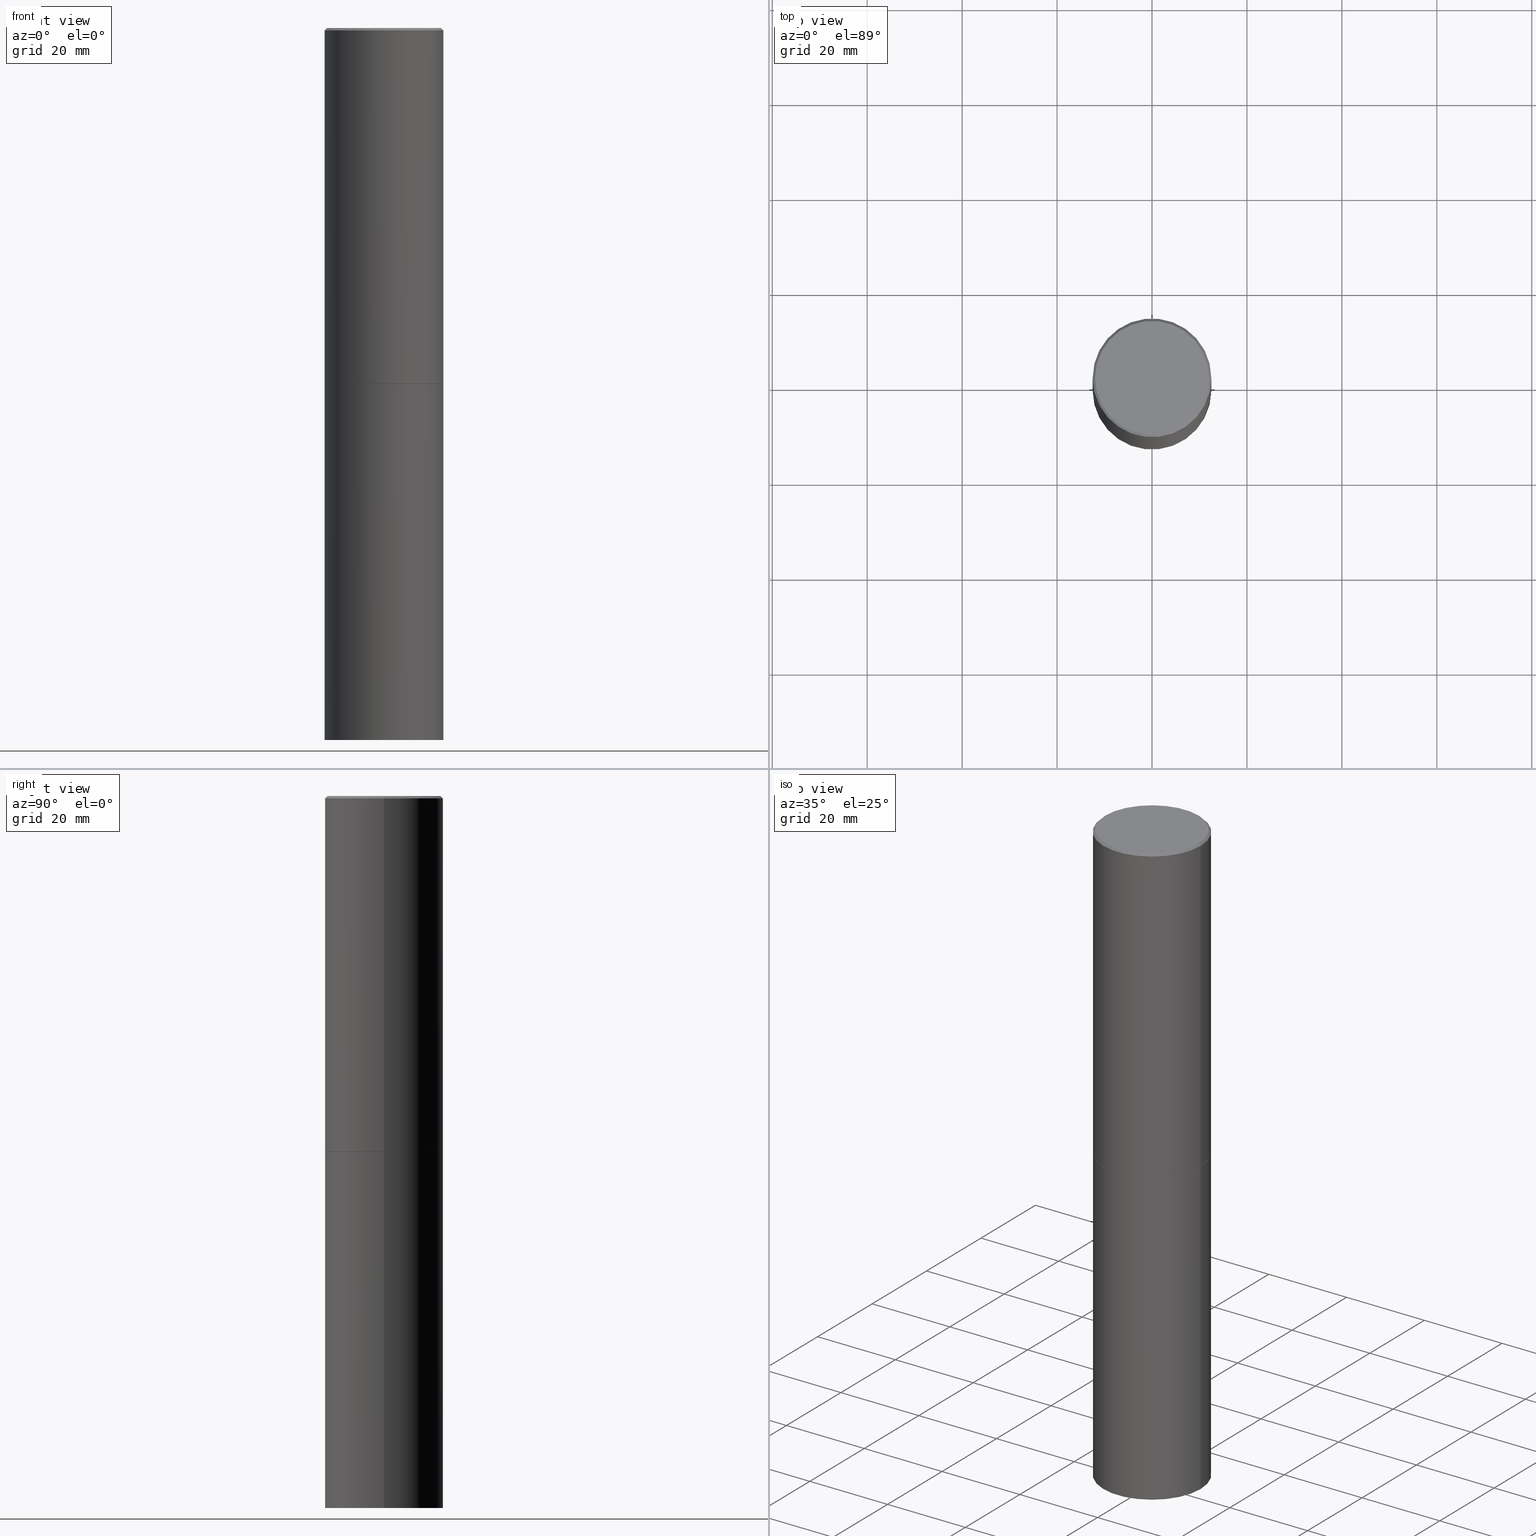
[diagram: canonical four-view strip — front | top / right | iso, engineering-drawing reading convention]
A machine part, canonical four-view strip (front | top / right | iso — engineering-drawing reading convention). The complete STEP part file that produces these views, byte-faithful:
ISO-10303-21;
HEADER;
FILE_DESCRIPTION (( 'STEP AP203' ),
    '1' );
FILE_NAME ('49400.STEP',
    '2024-02-28T19:01:41',
    ( '' ),
    ( '' ),
    'SwSTEP 2.0',
    'SolidWorks 2023',
    '' );
FILE_SCHEMA (( 'CONFIG_CONTROL_DESIGN' ));
ENDSEC;

DATA;
#1 = APPROVAL_DATE_TIME ( #198, #308 ) ;
#2 = PLANE ( 'NONE',  #48 ) ;
#3 = ADVANCED_FACE ( 'NONE', ( #311 ), #355, .T. ) ;
#4 = DIRECTION ( 'NONE',  ( -2.445468806185136597E-29, 3.491481338843145583E-15, 1.000000000000000000 ) ) ;
#5 = CONICAL_SURFACE ( 'NONE', #298, 0.4921499999999996988, 0.7853981633974469467 ) ;
#6 = PRODUCT_RELATED_PRODUCT_CATEGORY ( 'detail', '', ( #363 ) ) ;
#7 = PLANE ( 'NONE',  #322 ) ;
#8 = ORIENTED_EDGE ( 'NONE', *, *, #129, .T. ) ;
#9 = FACE_OUTER_BOUND ( 'NONE', #18, .T. ) ;
#10 = PERSON_AND_ORGANIZATION ( #328, #212 ) ;
#11 = DIRECTION ( 'NONE',  ( 1.000000000000000000, -6.982962677686264344E-15, 0.000000000000000000 ) ) ;
#12 = AXIS2_PLACEMENT_3D ( 'NONE', #82, #256, #342 ) ;
#13 = ORIENTED_EDGE ( 'NONE', *, *, #57, .F. ) ;
#14 = VERTEX_POINT ( 'NONE', #159 ) ;
#15 = AXIS2_PLACEMENT_3D ( 'NONE', #259, #178, #320 ) ;
#16 = DIMENSIONAL_EXPONENTS ( 1.000000000000000000, 0.000000000000000000, 0.000000000000000000, 0.000000000000000000, 0.000000000000000000, 0.000000000000000000, 0.000000000000000000 ) ;
#17 =( CONVERSION_BASED_UNIT ( 'INCH', #77 ) LENGTH_UNIT ( ) NAMED_UNIT ( #16 ) );
#18 = EDGE_LOOP ( 'NONE', ( #209, #144, #233, #54 ) ) ;
#19 = DIRECTION ( 'NONE',  ( -1.000000000000000000, 6.982962677686265922E-15, -4.876176775795935793E-29 ) ) ;
#20 = DIRECTION ( 'NONE',  ( 1.000000000000000000, -6.982962677686264344E-15, 0.000000000000000000 ) ) ;
#21 = CARTESIAN_POINT ( 'NONE',  ( 0.4921499999999998098, -3.436665081823294593E-15, 2.399810400207968762E-29 ) ) ;
#22 = PLANE ( 'NONE',  #100 ) ;
#23 = PERSON_AND_ORGANIZATION ( #328, #212 ) ;
#24 = ADVANCED_FACE ( 'NONE', ( #189 ), #47, .T. ) ;
#25 = PERSON_AND_ORGANIZATION_ROLE ( 'design_owner' ) ;
#26 = LINE ( 'NONE', #347, #74 ) ;
#27 = APPROVAL ( #267, 'UNSPECIFIED' ) ;
#28 = COORDINATED_UNIVERSAL_TIME_OFFSET ( 5, 0, .BEHIND. ) ;
#29 = COORDINATED_UNIVERSAL_TIME_OFFSET ( 5, 0, .BEHIND. ) ;
#30 = DIRECTION ( 'NONE',  ( -2.445468806185136597E-29, 3.491481338843145583E-15, 1.000000000000000000 ) ) ;
#31 = VECTOR ( 'NONE', #362, 39.37007874015748143 ) ;
#32 = DIRECTION ( 'NONE',  ( 1.000000000000000000, -6.982962677686265922E-15, 0.000000000000000000 ) ) ;
#33 = CARTESIAN_POINT ( 'NONE',  ( -0.4921499999999996988, 3.366835455046430506E-15, -0.02000000000000010797 ) ) ;
#34 = LOCAL_TIME ( 14, 1, 41.00000000000000000, #28 ) ;
#35 = VERTEX_POINT ( 'NONE', #191 ) ;
#36 = ORIENTED_EDGE ( 'NONE', *, *, #221, .T. ) ;
#37 = AXIS2_PLACEMENT_3D ( 'NONE', #223, #255, #194 ) ;
#38 = ORIENTED_EDGE ( 'NONE', *, *, #250, .F. ) ;
#39 = FACE_OUTER_BOUND ( 'NONE', #244, .T. ) ;
#40 = CARTESIAN_POINT ( 'NONE',  ( -0.4921499999999996988, 3.366835455046430506E-15, -0.02000000000000010797 ) ) ;
#41 = AXIS2_PLACEMENT_3D ( 'NONE', #365, #125, #338 ) ;
#42 = ADVANCED_FACE ( 'NONE', ( #39 ), #5, .T. ) ;
#43 = DIRECTION ( 'NONE',  ( 0.000000000000000000, 0.000000000000000000, 1.000000000000000000 ) ) ;
#44 = LINE ( 'NONE', #156, #314 ) ;
#45 = FACE_OUTER_BOUND ( 'NONE', #271, .T. ) ;
#46 = PERSON_AND_ORGANIZATION ( #328, #212 ) ;
#47 = CYLINDRICAL_SURFACE ( 'NONE', #284, 0.4921499999999999764 ) ;
#48 = AXIS2_PLACEMENT_3D ( 'NONE', #323, #61, #296 ) ;
#49 = APPROVAL_PERSON_ORGANIZATION ( #315, #27, #228 ) ;
#50 = UNCERTAINTY_MEASURE_WITH_UNIT (LENGTH_MEASURE( 1.000000000000000082E-05 ), #17, 'distance_accuracy_value', 'NONE');
#51 = FACE_OUTER_BOUND ( 'NONE', #330, .T. ) ;
#52 = CC_DESIGN_PERSON_AND_ORGANIZATION_ASSIGNMENT ( #286, #258, ( #310 ) ) ;
#53 = PERSON_AND_ORGANIZATION_ROLE ( 'design_supplier' ) ;
#54 = ORIENTED_EDGE ( 'NONE', *, *, #63, .F. ) ;
#55 = DIRECTION ( 'NONE',  ( 1.000000000000000000, -6.982962677686265922E-15, 0.000000000000000000 ) ) ;
#56 = EDGE_LOOP ( 'NONE', ( #326, #357, #224, #278 ) ) ;
#57 = EDGE_CURVE ( 'NONE', #115, #266, #281, .T. ) ;
#58 = AXIS2_PLACEMENT_3D ( 'NONE', #104, #229, #11 ) ;
#59 = CC_DESIGN_APPROVAL ( #27, ( #155 ) ) ;
#60 = CALENDAR_DATE ( 2024, 28, 2 ) ;
#61 = DIRECTION ( 'NONE',  ( 2.438088387897960049E-29, -3.491481338843145188E-15, -1.000000000000000000 ) ) ;
#62 = CARTESIAN_POINT ( 'NONE',  ( -0.4921499999999999764, -1.196718392382684217E-14, -2.952700000000000102 ) ) ;
#63 = EDGE_CURVE ( 'NONE', #76, #184, #287, .T. ) ;
#64 = VERTEX_POINT ( 'NONE', #366 ) ;
#65 = CLOSED_SHELL ( 'NONE', ( #117, #188, #329, #24 ) ) ;
#66 = CC_DESIGN_APPROVAL ( #308, ( #116 ) ) ;
#67 = CC_DESIGN_PERSON_AND_ORGANIZATION_ASSIGNMENT ( #108, #53, ( #116 ) ) ;
#68 = ORIENTED_EDGE ( 'NONE', *, *, #257, .F. ) ;
#69 = ORIENTED_EDGE ( 'NONE', *, *, #339, .F. ) ;
#70 = ORIENTED_EDGE ( 'NONE', *, *, #333, .F. ) ;
#71 = ORIENTED_EDGE ( 'NONE', *, *, #83, .F. ) ;
#72 = CARTESIAN_POINT ( 'NONE',  ( 0.000000000000000000, 0.000000000000000000, 0.000000000000000000 ) ) ;
#73 = DIRECTION ( 'NONE',  ( -1.000000000000000000, 6.982962677686265922E-15, 0.000000000000000000 ) ) ;
#74 = VECTOR ( 'NONE', #260, 39.37007874015748143 ) ;
#75 = VECTOR ( 'NONE', #254, 39.37007874015748143 ) ;
#76 = VERTEX_POINT ( 'NONE', #337 ) ;
#77 = LENGTH_MEASURE_WITH_UNIT ( LENGTH_MEASURE( 0.02539999999999999897 ), #101 );
#78 = CARTESIAN_POINT ( 'NONE',  ( -0.4911499999999999755, -6.819466302516424705E-15, -2.952700000000000546 ) ) ;
#79 = CC_DESIGN_SECURITY_CLASSIFICATION ( #310, ( #116 ) ) ;
#80 = CALENDAR_DATE ( 2024, 28, 2 ) ;
#81 = MECHANICAL_CONTEXT ( 'NONE', #119, 'mechanical' ) ;
#82 = CARTESIAN_POINT ( 'NONE',  ( 7.220735744022853640E-29, -1.030929694920215659E-14, -2.952700000000000546 ) ) ;
#83 = EDGE_CURVE ( 'NONE', #146, #14, #128, .T. ) ;
#84 = EDGE_LOOP ( 'NONE', ( #210, #351 ) ) ;
#85 = DIRECTION ( 'NONE',  ( -2.445468806185136597E-29, 3.491481338843145583E-15, 1.000000000000000000 ) ) ;
#86 = CIRCLE ( 'NONE', #218, 0.4921499999999996988 ) ;
#87 = PLANE ( 'NONE',  #12 ) ;
#88 = EDGE_CURVE ( 'NONE', #352, #14, #157, .T. ) ;
#89 = ORIENTED_EDGE ( 'NONE', *, *, #339, .T. ) ;
#90 = CC_DESIGN_PERSON_AND_ORGANIZATION_ASSIGNMENT ( #10, #317, ( #116 ) ) ;
#91 = EDGE_LOOP ( 'NONE', ( #8, #340 ) ) ;
#92 = ORIENTED_EDGE ( 'NONE', *, *, #270, .F. ) ;
#93 = ORIENTED_EDGE ( 'NONE', *, *, #221, .F. ) ;
#94 = ADVANCED_FACE ( 'NONE', ( #126 ), #252, .T. ) ;
#95 = AXIS2_PLACEMENT_3D ( 'NONE', #207, #318, #169 ) ;
#96 = AXIS2_PLACEMENT_3D ( 'NONE', #208, #300, #145 ) ;
#97 = CARTESIAN_POINT ( 'NONE',  ( 3.436665081823367957E-15, 0.4921499999999896513, -2.952700000000001435 ) ) ;
#98 = DIRECTION ( 'NONE',  ( -0.7071067811865465735, 2.468850131082246805E-15, -0.7071067811865484609 ) ) ;
#99 = APPLICATION_PROTOCOL_DEFINITION ( 'international standard', 'config_control_design', 1994, #119 ) ;
#100 = AXIS2_PLACEMENT_3D ( 'NONE', #97, #248, #19 ) ;
#101 =( LENGTH_UNIT ( ) NAMED_UNIT ( * ) SI_UNIT ( $, .METRE. ) );
#102 = DATE_AND_TIME ( #80, #299 ) ;
#103 = CARTESIAN_POINT ( 'NONE',  ( 4.890937612370299433E-31, -6.982962677686328587E-17, -0.02000000000000010797 ) ) ;
#104 = CARTESIAN_POINT ( 'NONE',  ( 7.220735744022853640E-29, -1.030929694920215659E-14, -2.952700000000000546 ) ) ;
#105 = VECTOR ( 'NONE', #292, 39.37007874015748143 ) ;
#106 = ADVANCED_FACE ( 'NONE', ( #45 ), #87, .F. ) ;
#107 = CARTESIAN_POINT ( 'NONE',  ( 7.220735744022852519E-29, -1.030929694920215502E-14, -2.952700000000000102 ) ) ;
#108 = PERSON_AND_ORGANIZATION ( #328, #212 ) ;
#109 = CARTESIAN_POINT ( 'NONE',  ( -0.4921499999999999764, -1.690881473276754954E-15, -2.951700000000000212 ) ) ;
#110 = ORIENTED_EDGE ( 'NONE', *, *, #83, .T. ) ;
#111 = DIRECTION ( 'NONE',  ( 1.000000000000000000, -6.982962677686265922E-15, 4.876176775795935793E-29 ) ) ;
#112 = CALENDAR_DATE ( 2024, 28, 2 ) ;
#113 = APPLICATION_CONTEXT ( 'configuration controlled 3d designs of mechanical parts and assemblies' ) ;
#114 = ORIENTED_EDGE ( 'NONE', *, *, #306, .F. ) ;
#115 = VERTEX_POINT ( 'NONE', #173 ) ;
#116 = PRODUCT_DEFINITION_FORMATION_WITH_SPECIFIED_SOURCE ( 'ANY', '', #363, .NOT_KNOWN. ) ;
#117 = ADVANCED_FACE ( 'NONE', ( #9 ), #133, .T. ) ;
#118 = ORIENTED_EDGE ( 'NONE', *, *, #57, .T. ) ;
#119 = APPLICATION_CONTEXT ( 'configuration controlled 3d designs of mechanical parts and assemblies' ) ;
#120 = DIRECTION ( 'NONE',  ( 1.000000000000000000, -6.982962677686265922E-15, 4.876176775795935793E-29 ) ) ;
#121 = ORIENTED_EDGE ( 'NONE', *, *, #161, .T. ) ;
#122 = CONICAL_SURFACE ( 'NONE', #95, 0.4911499999999999755, 0.7853981633972775267 ) ;
#123 = AXIS2_PLACEMENT_3D ( 'NONE', #103, #268, #227 ) ;
#124 = DIRECTION ( 'NONE',  ( -2.445468806185136597E-29, 3.491481338843145583E-15, 1.000000000000000000 ) ) ;
#125 = DIRECTION ( 'NONE',  ( -2.445468806185136597E-29, 3.491481338843145583E-15, 1.000000000000000000 ) ) ;
#126 = FACE_OUTER_BOUND ( 'NONE', #246, .T. ) ;
#127 = DIRECTION ( 'NONE',  ( 1.000000000000000000, -6.982962677686265922E-15, 0.000000000000000000 ) ) ;
#128 = LINE ( 'NONE', #361, #130 ) ;
#129 = EDGE_CURVE ( 'NONE', #184, #217, #195, .T. ) ;
#130 = VECTOR ( 'NONE', #307, 39.37007874015748143 ) ;
#131 = DIRECTION ( 'NONE',  ( -2.445468806185136597E-29, 3.491481338843145583E-15, 1.000000000000000000 ) ) ;
#132 = APPROVAL_STATUS ( 'not_yet_approved' ) ;
#133 = CYLINDRICAL_SURFACE ( 'NONE', #293, 0.4921499999999999764 ) ;
#134 = DATE_AND_TIME ( #112, #34 ) ;
#135 = ADVANCED_FACE ( 'NONE', ( #51 ), #122, .T. ) ;
#136 = DIRECTION ( 'NONE',  ( 1.000000000000000000, -6.982962677686265922E-15, 0.000000000000000000 ) ) ;
#137 = LOCAL_TIME ( 14, 1, 41.00000000000000000, #168 ) ;
#138 = DIRECTION ( 'NONE',  ( -2.445468806185136597E-29, 3.491481338843145583E-15, 1.000000000000000000 ) ) ;
#139 = ORIENTED_EDGE ( 'NONE', *, *, #354, .F. ) ;
#140 = APPROVAL_ROLE ( '' ) ;
#141 = DIRECTION ( 'NONE',  ( 2.438088387897960049E-29, -3.491481338843145188E-15, -1.000000000000000000 ) ) ;
#142 = AXIS2_PLACEMENT_3D ( 'NONE', #325, #30, #136 ) ;
#143 = LOCAL_TIME ( 14, 1, 41.00000000000000000, #345 ) ;
#144 = ORIENTED_EDGE ( 'NONE', *, *, #183, .T. ) ;
#145 = DIRECTION ( 'NONE',  ( 1.000000000000000000, -6.982962677686264344E-15, 0.000000000000000000 ) ) ;
#146 = VERTEX_POINT ( 'NONE', #202 ) ;
#147 = EDGE_CURVE ( 'NONE', #274, #215, #196, .T. ) ;
#148 = CIRCLE ( 'NONE', #253, 0.4721499999999996255 ) ;
#149 = CIRCLE ( 'NONE', #344, 0.4921499999999999764 ) ;
#150 = ORIENTED_EDGE ( 'NONE', *, *, #147, .F. ) ;
#151 = CARTESIAN_POINT ( 'NONE',  ( 0.4921499999999999764, -1.374247054968660936E-14, -2.951700000000000212 ) ) ;
#152 = EDGE_LOOP ( 'NONE', ( #150, #304, #200, #69 ) ) ;
#153 =( NAMED_UNIT ( * ) SI_UNIT ( $, .STERADIAN. ) SOLID_ANGLE_UNIT ( ) );
#154 = CARTESIAN_POINT ( 'NONE',  ( 0.4921499999999999764, -3.436665081823295777E-15, 2.399810400207969603E-29 ) ) ;
#155 = PRODUCT_DEFINITION ( 'UNKNOWN', '', #116, #234 ) ;
#156 = CARTESIAN_POINT ( 'NONE',  ( -0.4921499999999998098, 3.496936074043331714E-15, -2.420853904668950949E-29 ) ) ;
#157 = LINE ( 'NONE', #21, #31 ) ;
#158 = DIRECTION ( 'NONE',  ( 1.000000000000000000, 0.000000000000000000, 0.000000000000000000 ) ) ;
#159 = CARTESIAN_POINT ( 'NONE',  ( 0.4921499999999996988, -3.446223716380120377E-15, -0.02000000000000010797 ) ) ;
#160 = ORIENTED_EDGE ( 'NONE', *, *, #270, .T. ) ;
#161 = EDGE_CURVE ( 'NONE', #352, #215, #343, .T. ) ;
#162 = DIRECTION ( 'NONE',  ( -2.445468806185136877E-29, 3.491481338843145188E-15, 1.000000000000000000 ) ) ;
#163 = DIRECTION ( 'NONE',  ( 2.445468806185136597E-29, -3.491481338843145583E-15, -1.000000000000000000 ) ) ;
#164 = CALENDAR_DATE ( 2024, 28, 2 ) ;
#165 = DIRECTION ( 'NONE',  ( 1.000000000000000000, -6.982962677686265922E-15, 4.876176775795935793E-29 ) ) ;
#166 = DIRECTION ( 'NONE',  ( 1.000000000000000000, -6.982962677686265922E-15, 0.000000000000000000 ) ) ;
#167 = CC_DESIGN_PERSON_AND_ORGANIZATION_ASSIGNMENT ( #23, #25, ( #363 ) ) ;
#168 = COORDINATED_UNIVERSAL_TIME_OFFSET ( 5, 0, .BEHIND. ) ;
#169 = DIRECTION ( 'NONE',  ( 1.000000000000000000, -6.982962677686264344E-15, 0.000000000000000000 ) ) ;
#170 = ADVANCED_BREP_SHAPE_REPRESENTATION ( '49400', ( #301, #177, #230 ), #245 ) ;
#171 = ORIENTED_EDGE ( 'NONE', *, *, #88, .F. ) ;
#172 = APPLICATION_PROTOCOL_DEFINITION ( 'international standard', 'config_control_design', 1994, #113 ) ;
#173 = CARTESIAN_POINT ( 'NONE',  ( -0.4721499999999996255, 3.331920641657999252E-15, 8.537024980177643606E-18 ) ) ;
#174 = CIRCLE ( 'NONE', #180, 0.4921499999999999764 ) ;
#175 = DATE_AND_TIME ( #60, #137 ) ;
#176 = DIRECTION ( 'NONE',  ( -2.445468806185136597E-29, 3.491481338843145583E-15, 1.000000000000000000 ) ) ;
#177 = MANIFOLD_SOLID_BREP ( 'Body-Move/Copy2[2]', #309 ) ;
#178 = DIRECTION ( 'NONE',  ( -2.445468806185136597E-29, 3.491481338843145583E-15, 1.000000000000000000 ) ) ;
#179 = ORIENTED_EDGE ( 'NONE', *, *, #147, .T. ) ;
#180 = AXIS2_PLACEMENT_3D ( 'NONE', #107, #4, #32 ) ;
#181 = LOCAL_TIME ( 14, 1, 41.00000000000000000, #201 ) ;
#182 = EDGE_LOOP ( 'NONE', ( #70, #324 ) ) ;
#183 = EDGE_CURVE ( 'NONE', #64, #217, #26, .T. ) ;
#184 = VERTEX_POINT ( 'NONE', #239 ) ;
#185 = CIRCLE ( 'NONE', #58, 0.4911499999999999755 ) ;
#186 = FACE_OUTER_BOUND ( 'NONE', #152, .T. ) ;
#187 = ORIENTED_EDGE ( 'NONE', *, *, #219, .F. ) ;
#188 = ADVANCED_FACE ( 'NONE', ( #232 ), #7, .T. ) ;
#189 = FACE_OUTER_BOUND ( 'NONE', #56, .T. ) ;
#190 =( NAMED_UNIT ( * ) PLANE_ANGLE_UNIT ( ) SI_UNIT ( $, .RADIAN. ) );
#191 = CARTESIAN_POINT ( 'NONE',  ( 0.4911499999999999755, -1.373897906834776478E-14, -2.952700000000000546 ) ) ;
#192 = CARTESIAN_POINT ( 'NONE',  ( 0.000000000000000000, 0.000000000000000000, 0.000000000000000000 ) ) ;
#193 = EDGE_LOOP ( 'NONE', ( #356, #89, #327, #68 ) ) ;
#194 = DIRECTION ( 'NONE',  ( 1.000000000000000000, -6.982962677686265922E-15, 4.876176775795935793E-29 ) ) ;
#195 = CIRCLE ( 'NONE', #222, 0.4921499999999999764 ) ;
#196 = LINE ( 'NONE', #78, #105 ) ;
#197 = APPROVAL_PERSON_ORGANIZATION ( #214, #272, #231 ) ;
#198 = DATE_AND_TIME ( #164, #181 ) ;
#199 = CARTESIAN_POINT ( 'NONE',  ( 7.220735744022852519E-29, -1.030929694920215502E-14, -2.952700000000000102 ) ) ;
#200 = ORIENTED_EDGE ( 'NONE', *, *, #306, .T. ) ;
#201 = COORDINATED_UNIVERSAL_TIME_OFFSET ( 5, 0, .BEHIND. ) ;
#202 = CARTESIAN_POINT ( 'NONE',  ( 0.4721499999999996255, -3.342703923013973396E-15, 8.537024980224040028E-18 ) ) ;
#203 = CALENDAR_DATE ( 2024, 28, 2 ) ;
#204 = FACE_OUTER_BOUND ( 'NONE', #84, .T. ) ;
#205 = AXIS2_PLACEMENT_3D ( 'NONE', #305, #226, #73 ) ;
#206 = EDGE_CURVE ( 'NONE', #217, #184, #174, .T. ) ;
#207 = CARTESIAN_POINT ( 'NONE',  ( 7.220735744022853640E-29, -1.030929694920215659E-14, -2.952700000000000546 ) ) ;
#208 = CARTESIAN_POINT ( 'NONE',  ( 7.220735744022853640E-29, -1.030929694920215659E-14, -2.952700000000000546 ) ) ;
#209 = ORIENTED_EDGE ( 'NONE', *, *, #333, .T. ) ;
#210 = ORIENTED_EDGE ( 'NONE', *, *, #219, .T. ) ;
#211 = CIRCLE ( 'NONE', #15, 0.4721499999999996255 ) ;
#212 = ORGANIZATION ( 'UNSPECIFIED', 'UNSPECIFIED', '' ) ;
#213 = ORIENTED_EDGE ( 'NONE', *, *, #302, .T. ) ;
#214 = PERSON_AND_ORGANIZATION ( #328, #212 ) ;
#215 = VERTEX_POINT ( 'NONE', #109 ) ;
#216 = CARTESIAN_POINT ( 'NONE',  ( -0.4911499999999999755, -6.814167848168202303E-15, -2.952700000000000546 ) ) ;
#217 = VERTEX_POINT ( 'NONE', #62 ) ;
#218 = AXIS2_PLACEMENT_3D ( 'NONE', #349, #85, #297 ) ;
#219 = EDGE_CURVE ( 'NONE', #115, #146, #211, .T. ) ;
#220 = CARTESIAN_POINT ( 'NONE',  ( 1.444171603492632270E-28, -2.061894304653819197E-14, -5.905499999999999972 ) ) ;
#221 = EDGE_CURVE ( 'NONE', #35, #274, #185, .T. ) ;
#222 = AXIS2_PLACEMENT_3D ( 'NONE', #199, #131, #166 ) ;
#223 = CARTESIAN_POINT ( 'NONE',  ( 0.000000000000000000, 0.000000000000000000, 0.000000000000000000 ) ) ;
#224 = ORIENTED_EDGE ( 'NONE', *, *, #63, .T. ) ;
#225 = CARTESIAN_POINT ( 'NONE',  ( 0.4911499999999999755, -1.373897906834776478E-14, -2.952700000000000546 ) ) ;
#226 = DIRECTION ( 'NONE',  ( 2.445468806185136597E-29, -3.491481338843145583E-15, -1.000000000000000000 ) ) ;
#227 = DIRECTION ( 'NONE',  ( 1.000000000000000000, -6.982962677686265922E-15, 0.000000000000000000 ) ) ;
#228 = APPROVAL_ROLE ( '' ) ;
#229 = DIRECTION ( 'NONE',  ( -2.445468806185136597E-29, 3.491481338843145583E-15, 1.000000000000000000 ) ) ;
#230 = AXIS2_PLACEMENT_3D ( 'NONE', #192, #43, #158 ) ;
#231 = APPROVAL_ROLE ( '' ) ;
#232 = FACE_OUTER_BOUND ( 'NONE', #182, .T. ) ;
#233 = ORIENTED_EDGE ( 'NONE', *, *, #129, .F. ) ;
#234 = DESIGN_CONTEXT ( 'detailed design', #113, 'design' ) ;
#235 = DIRECTION ( 'NONE',  ( 1.000000000000000000, -6.982962677686265922E-15, 4.876006802227162976E-29 ) ) ;
#236 = EDGE_CURVE ( 'NONE', #64, #76, #240, .T. ) ;
#237 = ORIENTED_EDGE ( 'NONE', *, *, #161, .F. ) ;
#238 = APPROVAL_DATE_TIME ( #319, #27 ) ;
#239 = CARTESIAN_POINT ( 'NONE',  ( 0.4921499999999999764, -1.374596203102545079E-14, -2.952700000000000102 ) ) ;
#240 = CIRCLE ( 'NONE', #269, 0.4921499999999999764 ) ;
#241 = PRODUCT_DEFINITION_SHAPE ( 'NONE', 'NONE',  #155 ) ;
#242 = CIRCLE ( 'NONE', #41, 0.4921499999999999764 ) ;
#243 = EDGE_LOOP ( 'NONE', ( #71, #187, #118, #331 ) ) ;
#244 = EDGE_LOOP ( 'NONE', ( #38, #110, #160, #13 ) ) ;
#245 =( GEOMETRIC_REPRESENTATION_CONTEXT ( 3 ) GLOBAL_UNCERTAINTY_ASSIGNED_CONTEXT ( ( #50 ) ) GLOBAL_UNIT_ASSIGNED_CONTEXT ( ( #17, #190, #153 ) ) REPRESENTATION_CONTEXT ( 'NONE', 'WORKASPACE' ) );
#246 = EDGE_LOOP ( 'NONE', ( #121, #213, #92, #171 ) ) ;
#247 = CIRCLE ( 'NONE', #261, 0.4911499999999999755 ) ;
#248 = DIRECTION ( 'NONE',  ( 2.438088387897960049E-29, -3.491481338843145188E-15, -1.000000000000000000 ) ) ;
#249 = DIRECTION ( 'NONE',  ( -2.445468806185136877E-29, 3.491481338843145188E-15, 1.000000000000000000 ) ) ;
#250 = EDGE_CURVE ( 'NONE', #146, #115, #148, .T. ) ;
#251 = CARTESIAN_POINT ( 'NONE',  ( 4.890937612370299433E-31, -6.982962677686328587E-17, -0.02000000000000010797 ) ) ;
#252 = CYLINDRICAL_SURFACE ( 'NONE', #37, 0.4921499999999998098 ) ;
#253 = AXIS2_PLACEMENT_3D ( 'NONE', #294, #265, #235 ) ;
#254 = DIRECTION ( 'NONE',  ( 0.7071067811864267805, -2.468850131080992517E-15, 0.7071067811866682540 ) ) ;
#255 = DIRECTION ( 'NONE',  ( -2.445468806185136597E-29, 3.491481338843145583E-15, 1.000000000000000000 ) ) ;
#256 = DIRECTION ( 'NONE',  ( -2.438088387897960049E-29, 3.491481338843145188E-15, 1.000000000000000000 ) ) ;
#257 = EDGE_CURVE ( 'NONE', #266, #14, #86, .T. ) ;
#258 = PERSON_AND_ORGANIZATION_ROLE ( 'classification_officer' ) ;
#259 = CARTESIAN_POINT ( 'NONE',  ( -2.087702828670439639E-46, 2.980686340760894400E-32, 8.537024980200822558E-18 ) ) ;
#260 = DIRECTION ( 'NONE',  ( -2.445468806185136877E-29, 3.491481338843145188E-15, 1.000000000000000000 ) ) ;
#261 = AXIS2_PLACEMENT_3D ( 'NONE', #277, #334, #20 ) ;
#262 = APPROVAL_DATE_TIME ( #134, #272 ) ;
#263 = DATE_TIME_ROLE ( 'creation_date' ) ;
#264 = ADVANCED_FACE ( 'NONE', ( #204 ), #2, .F. ) ;
#265 = DIRECTION ( 'NONE',  ( -2.445468806185136597E-29, 3.491481338843145583E-15, 1.000000000000000000 ) ) ;
#266 = VERTEX_POINT ( 'NONE', #33 ) ;
#267 = APPROVAL_STATUS ( 'not_yet_approved' ) ;
#268 = DIRECTION ( 'NONE',  ( -2.445468806185136597E-29, 3.491481338843145583E-15, 1.000000000000000000 ) ) ;
#269 = AXIS2_PLACEMENT_3D ( 'NONE', #316, #138, #55 ) ;
#270 = EDGE_CURVE ( 'NONE', #14, #266, #332, .T. ) ;
#271 = EDGE_LOOP ( 'NONE', ( #93, #139 ) ) ;
#272 = APPROVAL ( #353, 'UNSPECIFIED' ) ;
#273 = FACE_OUTER_BOUND ( 'NONE', #193, .T. ) ;
#274 = VERTEX_POINT ( 'NONE', #216 ) ;
#275 = AXIS2_PLACEMENT_3D ( 'NONE', #72, #303, #120 ) ;
#276 = ADVANCED_FACE ( 'NONE', ( #186 ), #364, .T. ) ;
#277 = CARTESIAN_POINT ( 'NONE',  ( 7.220735744022853640E-29, -1.030929694920215659E-14, -2.952700000000000546 ) ) ;
#278 = ORIENTED_EDGE ( 'NONE', *, *, #206, .F. ) ;
#279 = CC_DESIGN_APPROVAL ( #272, ( #310 ) ) ;
#280 = FACE_OUTER_BOUND ( 'NONE', #91, .T. ) ;
#281 = LINE ( 'NONE', #40, #359 ) ;
#282 = LINE ( 'NONE', #225, #75 ) ;
#283 = DIRECTION ( 'NONE',  ( -1.000000000000000000, 6.982962677686265922E-15, 0.000000000000000000 ) ) ;
#284 = AXIS2_PLACEMENT_3D ( 'NONE', #358, #124, #165 ) ;
#285 = APPROVAL_PERSON_ORGANIZATION ( #46, #308, #140 ) ;
#286 = PERSON_AND_ORGANIZATION ( #328, #212 ) ;
#287 = LINE ( 'NONE', #154, #313 ) ;
#288 = ADVANCED_FACE ( 'NONE', ( #273 ), #312, .T. ) ;
#289 = CARTESIAN_POINT ( 'NONE',  ( 0.000000000000000000, 0.000000000000000000, 0.000000000000000000 ) ) ;
#290 = SHAPE_DEFINITION_REPRESENTATION ( #241, #170 ) ;
#291 = PERSON_AND_ORGANIZATION ( #328, #212 ) ;
#292 = DIRECTION ( 'NONE',  ( -0.7071067811864267805, 7.493145998869918709E-15, 0.7071067811866682540 ) ) ;
#293 = AXIS2_PLACEMENT_3D ( 'NONE', #289, #176, #111 ) ;
#294 = CARTESIAN_POINT ( 'NONE',  ( -2.087702828670439639E-46, 2.980686340760894400E-32, 8.537024980200822558E-18 ) ) ;
#295 = DATE_TIME_ROLE ( 'classification_date' ) ;
#296 = DIRECTION ( 'NONE',  ( -1.000000000000000000, 6.982962677686265922E-15, -4.876176775795935793E-29 ) ) ;
#297 = DIRECTION ( 'NONE',  ( 1.000000000000000000, -6.982962677686265922E-15, 0.000000000000000000 ) ) ;
#298 = AXIS2_PLACEMENT_3D ( 'NONE', #251, #163, #283 ) ;
#299 = LOCAL_TIME ( 14, 1, 41.00000000000000000, #29 ) ;
#300 = DIRECTION ( 'NONE',  ( -2.445468806185136597E-29, 3.491481338843145583E-15, 1.000000000000000000 ) ) ;
#301 = MANIFOLD_SOLID_BREP ( 'Body-Move/Copy2[1]', #65 ) ;
#302 = EDGE_CURVE ( 'NONE', #215, #266, #44, .T. ) ;
#303 = DIRECTION ( 'NONE',  ( -2.445468806185136597E-29, 3.491481338843145583E-15, 1.000000000000000000 ) ) ;
#304 = ORIENTED_EDGE ( 'NONE', *, *, #354, .T. ) ;
#305 = CARTESIAN_POINT ( 'NONE',  ( 4.890937612370299433E-31, -6.982962677686328587E-17, -0.02000000000000010797 ) ) ;
#306 = EDGE_CURVE ( 'NONE', #35, #352, #282, .T. ) ;
#307 = DIRECTION ( 'NONE',  ( 0.7071067811865465735, -7.319954787623252890E-15, -0.7071067811865484609 ) ) ;
#308 = APPROVAL ( #132, 'UNSPECIFIED' ) ;
#309 = CLOSED_SHELL ( 'NONE', ( #135, #94, #42, #3, #288, #276, #106, #264 ) ) ;
#310 = SECURITY_CLASSIFICATION ( '', '', #341 ) ;
#311 = FACE_OUTER_BOUND ( 'NONE', #243, .T. ) ;
#312 = CYLINDRICAL_SURFACE ( 'NONE', #275, 0.4921499999999998098 ) ;
#313 = VECTOR ( 'NONE', #249, 39.37007874015748143 ) ;
#314 = VECTOR ( 'NONE', #162, 39.37007874015748143 ) ;
#315 = PERSON_AND_ORGANIZATION ( #328, #212 ) ;
#316 = CARTESIAN_POINT ( 'NONE',  ( 1.444171603492632270E-28, -2.061894304653819197E-14, -5.905499999999999972 ) ) ;
#317 = PERSON_AND_ORGANIZATION_ROLE ( 'creator' ) ;
#318 = DIRECTION ( 'NONE',  ( -2.445468806185136597E-29, 3.491481338843145583E-15, 1.000000000000000000 ) ) ;
#319 = DATE_AND_TIME ( #203, #143 ) ;
#320 = DIRECTION ( 'NONE',  ( 1.000000000000000000, -6.982962677686265922E-15, 4.876006802227162976E-29 ) ) ;
#321 = PERSON_AND_ORGANIZATION_ROLE ( 'creator' ) ;
#322 = AXIS2_PLACEMENT_3D ( 'NONE', #350, #141, #346 ) ;
#323 = CARTESIAN_POINT ( 'NONE',  ( 3.297005828269567997E-15, 0.4721499999999996255, -1.644234401644689488E-15 ) ) ;
#324 = ORIENTED_EDGE ( 'NONE', *, *, #236, .F. ) ;
#325 = CARTESIAN_POINT ( 'NONE',  ( 7.218290275216666916E-29, -1.030580546786331359E-14, -2.951700000000000212 ) ) ;
#326 = ORIENTED_EDGE ( 'NONE', *, *, #183, .F. ) ;
#327 = ORIENTED_EDGE ( 'NONE', *, *, #88, .T. ) ;
#328 = PERSON ( 'UNSPECIFIED', 'UNSPECIFIED', 'UNSPECIFIED', ('UNSPECIFIED'), ('UNSPECIFIED'), ('UNSPECIFIED') ) ;
#329 = ADVANCED_FACE ( 'NONE', ( #280 ), #22, .F. ) ;
#330 = EDGE_LOOP ( 'NONE', ( #36, #179, #237, #114 ) ) ;
#331 = ORIENTED_EDGE ( 'NONE', *, *, #257, .T. ) ;
#332 = CIRCLE ( 'NONE', #123, 0.4921499999999996988 ) ;
#333 = EDGE_CURVE ( 'NONE', #76, #64, #149, .T. ) ;
#334 = DIRECTION ( 'NONE',  ( -2.445468806185136597E-29, 3.491481338843145583E-15, 1.000000000000000000 ) ) ;
#335 = DIRECTION ( 'NONE',  ( -2.445468806185136597E-29, 3.491481338843145583E-15, 1.000000000000000000 ) ) ;
#336 = CC_DESIGN_PERSON_AND_ORGANIZATION_ASSIGNMENT ( #291, #321, ( #155 ) ) ;
#337 = CARTESIAN_POINT ( 'NONE',  ( 0.4921499999999999764, -2.405560812836148932E-14, -5.905499999999999972 ) ) ;
#338 = DIRECTION ( 'NONE',  ( 1.000000000000000000, -6.982962677686265922E-15, 0.000000000000000000 ) ) ;
#339 = EDGE_CURVE ( 'NONE', #215, #352, #242, .T. ) ;
#340 = ORIENTED_EDGE ( 'NONE', *, *, #206, .T. ) ;
#341 = SECURITY_CLASSIFICATION_LEVEL ( 'unclassified' ) ;
#342 = DIRECTION ( 'NONE',  ( 1.000000000000000000, -6.982962677686265922E-15, 4.876176775795935793E-29 ) ) ;
#343 = CIRCLE ( 'NONE', #142, 0.4921499999999999764 ) ;
#344 = AXIS2_PLACEMENT_3D ( 'NONE', #220, #335, #127 ) ;
#345 = COORDINATED_UNIVERSAL_TIME_OFFSET ( 5, 0, .BEHIND. ) ;
#346 = DIRECTION ( 'NONE',  ( -1.000000000000000000, 6.982962677686265922E-15, -4.876176775795935793E-29 ) ) ;
#347 = CARTESIAN_POINT ( 'NONE',  ( -0.4921499999999999764, 3.496936074043332897E-15, -2.420853904668951509E-29 ) ) ;
#348 = CC_DESIGN_DATE_AND_TIME_ASSIGNMENT ( #102, #263, ( #155 ) ) ;
#349 = CARTESIAN_POINT ( 'NONE',  ( 4.890937612370299433E-31, -6.982962677686328587E-17, -0.02000000000000010797 ) ) ;
#350 = CARTESIAN_POINT ( 'NONE',  ( 3.436665081823440533E-15, 0.4921499999999793262, -5.905500000000001748 ) ) ;
#351 = ORIENTED_EDGE ( 'NONE', *, *, #250, .T. ) ;
#352 = VERTEX_POINT ( 'NONE', #151 ) ;
#353 = APPROVAL_STATUS ( 'not_yet_approved' ) ;
#354 = EDGE_CURVE ( 'NONE', #274, #35, #247, .T. ) ;
#355 = CONICAL_SURFACE ( 'NONE', #205, 0.4921499999999996988, 0.7853981633974469467 ) ;
#356 = ORIENTED_EDGE ( 'NONE', *, *, #302, .F. ) ;
#357 = ORIENTED_EDGE ( 'NONE', *, *, #236, .T. ) ;
#358 = CARTESIAN_POINT ( 'NONE',  ( 0.000000000000000000, 0.000000000000000000, 0.000000000000000000 ) ) ;
#359 = VECTOR ( 'NONE', #98, 39.37007874015748143 ) ;
#360 = CC_DESIGN_DATE_AND_TIME_ASSIGNMENT ( #175, #295, ( #310 ) ) ;
#361 = CARTESIAN_POINT ( 'NONE',  ( 0.4921499999999996988, -3.446223716380120377E-15, -0.02000000000000010797 ) ) ;
#362 = DIRECTION ( 'NONE',  ( -2.445468806185136877E-29, 3.491481338843145188E-15, 1.000000000000000000 ) ) ;
#363 = PRODUCT ( '49400', '49400', '', ( #81 ) ) ;
#364 = CONICAL_SURFACE ( 'NONE', #96, 0.4911499999999999755, 0.7853981633972775267 ) ;
#365 = CARTESIAN_POINT ( 'NONE',  ( 7.218290275216666916E-29, -1.030580546786331359E-14, -2.951700000000000212 ) ) ;
#366 = CARTESIAN_POINT ( 'NONE',  ( -0.4921499999999999764, -1.196718392382684217E-14, -5.905499999999999972 ) ) ;
ENDSEC;
END-ISO-10303-21;
